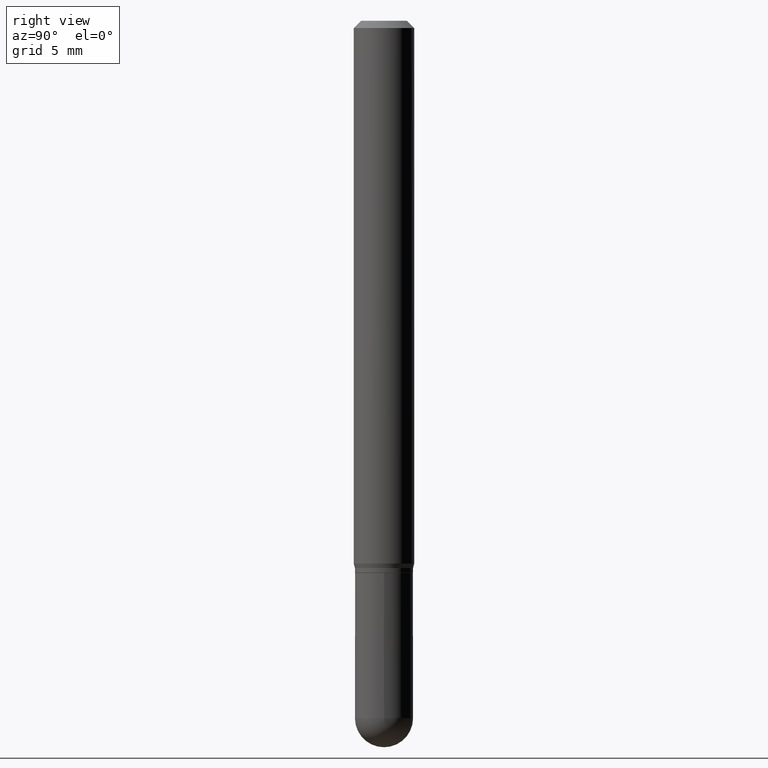
[diagram: clean part render]
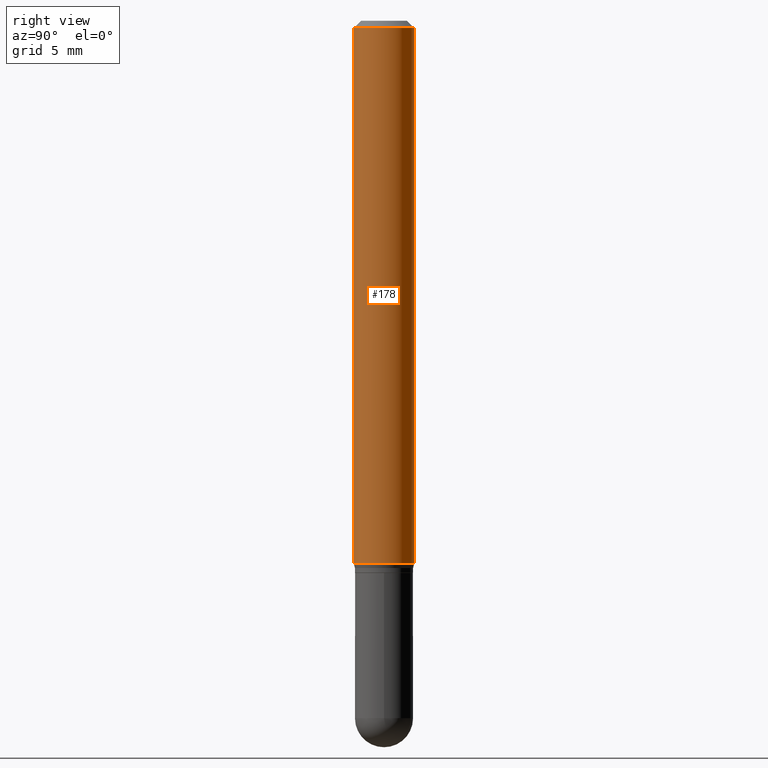
[diagram: same view with one face highlighted and labeled with its STEP entity id]
A machine part, right view. The second image highlights one B-rep face of the part: STEP entity #178.
In plain terms, the highlighted cylindrical surface (edge-blend (fillet) strip) has radius 1.5875 mm, axis along (-0, 0, 1).
Its self-contained STEP definition (entity closure, byte-faithful):
#4 = EDGE_CURVE ( 'NONE', #320, #436, #349, .T. ) ;
#28 = CARTESIAN_POINT ( 'NONE',  ( 4.440892098500901277E-16, 0.06249999999999610728, -1.120669872981079340 ) ) ;
#39 = DIRECTION ( 'NONE',  ( -2.445440949719142932E-29, 3.491521230887940809E-15, 1.000000000000000000 ) ) ;
#51 = EDGE_CURVE ( 'NONE', #197, #436, #509, .T. ) ;
#60 = CYLINDRICAL_SURFACE ( 'NONE', #482, 0.06250000000000000000 ) ;
#62 = CARTESIAN_POINT ( 'NONE',  ( -4.364351673553912750E-16, -0.06250000000000005551, -0.01500000000000011047 ) ) ;
#74 = ORIENTED_EDGE ( 'NONE', *, *, #51, .T. ) ;
#82 = ORIENTED_EDGE ( 'NONE', *, *, #4, .F. ) ;
#91 = FACE_OUTER_BOUND ( 'NONE', #232, .T. ) ;
#126 = CIRCLE ( 'NONE', #426, 0.06250000000000000000 ) ;
#128 = EDGE_CURVE ( 'NONE', #343, #320, #280, .T. ) ;
#129 = CARTESIAN_POINT ( 'NONE',  ( -4.364351673553916201E-16, -0.06250000000000000000, 2.182200769304962759E-16 ) ) ;
#140 = VECTOR ( 'NONE', #204, 39.37007874015748143 ) ;
#178 = ADVANCED_FACE ( 'NONE', ( #91 ), #60, .T. ) ;
#197 = VERTEX_POINT ( 'NONE', #28 ) ;
#204 = DIRECTION ( 'NONE',  ( -2.445440949719142932E-29, 3.491521230887940809E-15, 1.000000000000000000 ) ) ;
#232 = EDGE_LOOP ( 'NONE', ( #387, #74, #82, #354 ) ) ;
#235 = CARTESIAN_POINT ( 'NONE',  ( 3.668161424578794447E-31, -5.237281846332025450E-17, -0.01500000000000032904 ) ) ;
#253 = CARTESIAN_POINT ( 'NONE',  ( 0.000000000000000000, 0.000000000000000000, 0.000000000000000000 ) ) ;
#271 = EDGE_CURVE ( 'NONE', #343, #197, #126, .T. ) ;
#280 = LINE ( 'NONE', #129, #140 ) ;
#283 = CARTESIAN_POINT ( 'NONE',  ( 2.740531998504480438E-29, -3.912842654329929133E-15, -1.120669872981078896 ) ) ;
#307 = DIRECTION ( 'NONE',  ( -2.445440949719142652E-29, 3.491521230887940809E-15, 1.000000000000000000 ) ) ;
#310 = DIRECTION ( 'NONE',  ( -2.445440949719142652E-29, 3.491521230887940809E-15, 1.000000000000000000 ) ) ;
#320 = VERTEX_POINT ( 'NONE', #62 ) ;
#329 = CARTESIAN_POINT ( 'NONE',  ( -4.364351673553640100E-16, -0.06250000000000388578, -1.120669872981078674 ) ) ;
#343 = VERTEX_POINT ( 'NONE', #329 ) ;
#349 = CIRCLE ( 'NONE', #458, 0.06250000000000000000 ) ;
#354 = ORIENTED_EDGE ( 'NONE', *, *, #128, .F. ) ;
#370 = DIRECTION ( 'NONE',  ( -6.982962677686265922E-15, -1.000000000000000000, 3.491521230887940414E-15 ) ) ;
#387 = ORIENTED_EDGE ( 'NONE', *, *, #271, .T. ) ;
#397 = CARTESIAN_POINT ( 'NONE',  ( 4.440892098500625669E-16, 0.06250000000000000000, -2.182200769304962759E-16 ) ) ;
#408 = VECTOR ( 'NONE', #39, 39.37007874015748143 ) ;
#414 = DIRECTION ( 'NONE',  ( -2.445440949719142652E-29, 3.491521230887940809E-15, 1.000000000000000000 ) ) ;
#426 = AXIS2_PLACEMENT_3D ( 'NONE', #283, #310, #479 ) ;
#436 = VERTEX_POINT ( 'NONE', #466 ) ;
#458 = AXIS2_PLACEMENT_3D ( 'NONE', #235, #307, #467 ) ;
#466 = CARTESIAN_POINT ( 'NONE',  ( 4.440892098500901277E-16, 0.06249999999999995143, -0.01500000000000054588 ) ) ;
#467 = DIRECTION ( 'NONE',  ( -6.982962677686265922E-15, -1.000000000000000000, 3.483106191921935554E-15 ) ) ;
#479 = DIRECTION ( 'NONE',  ( -6.982962677686265922E-15, -1.000000000000000000, 4.370956789862821150E-15 ) ) ;
#482 = AXIS2_PLACEMENT_3D ( 'NONE', #253, #414, #370 ) ;
#509 = LINE ( 'NONE', #397, #408 ) ;